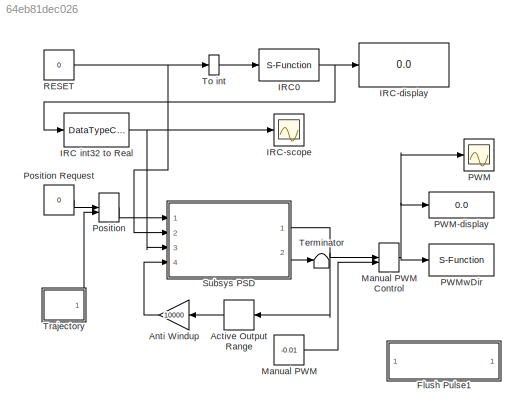
MODEL slx_64eb81dec026
KIND model
BLOCK [Constant]   RESET
  OpenFcn = if get_param(gcbh,'value')=='0' set_param(gcbh,'value','1'); else set_param(gcbh,'value','0'); end;
  Value = 0
BLOCK [DeadZone] Active Output Range
  LinearizeAsGain = off
  LowerValue = -1
  SaturateOnIntegerOverflow = off
  UpperValue = 1
BLOCK [Gain] Anti Windup
  Gain = 10000
  OutDataTypeStr = Inherit: Inherit via internal rule
  ParamDataTypeStr = Inherit: Inherit via internal rule
  SaturateOnIntegerOverflow = off
BLOCK [SubSystem] Flush Pulse1
  OpenFcn = system(['./run_model.sh ', get_param(bdroot(gcbh),'name'),' ', get_param(gcbh,'target_ip_address')]);
  Ports = []
  RequestExecContextInheritance = off
BLOCK [DataTypeConversion] IRC int32 to Real
  RndMeth = Floor
  SaturateOnIntegerOverflow = off
BLOCK [Display] IRC-display
  Decimation = 1
  Format = long
  Ports = [1]
BLOCK [Scope] IRC-scope
  DataFormat = StructureWithTime
  Floating = off
  MaxDataPoints = 200000
  NumInputPorts = 1
  Ports = [1]
  SampleTime = 0
  SaveName = ScopeData1
  ShowLegends = off
  TimeRange = 50
  YMax = 2100
  YMin = -2100
BLOCK [S-Function] IRC0
  EnableBusSupport = off
  FunctionName = sfIRCInput
  Parameters = Ts,chn-1,mode-1,gating-2,resetctrl-2,digfilter,reset_at_startup
  Ports = [1, 1]
BLOCK [Constant] Manual PWM
  Value = -0.01
BLOCK [ManualSwitch] Manual PWM Control
BLOCK [Scope] PWM
  DataFormat = StructureWithTime
  Floating = off
  MaxDataPoints = 200000
  NumInputPorts = 1
  Ports = [1]
  SampleTime = 0
  ShowLegends = off
  TimeRange = 50
  YMax = 0.1
  YMin = -0.1
BLOCK [Display] PWM-display
  Decimation = 1
  Ports = [1]
BLOCK [S-Function] PWMwDir
  EnableBusSupport = off
  FunctionName = sfPWMwDirOutput
  Parameters = chn-1,pwm_freq,dir_do_bit-1
  Ports = [1]
BLOCK [ManualSwitch] Position
  CurrentSetting = 0
BLOCK [Constant] Position Request
  Value = 0
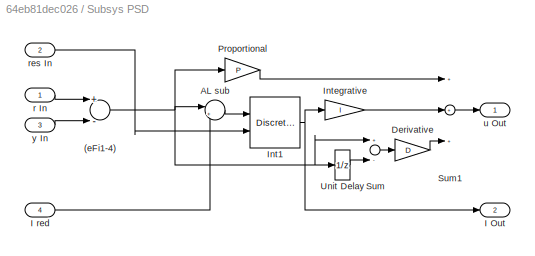
BLOCK [SubSystem] Subsys PSD
  Ports = [4, 2]
  RequestExecContextInheritance = off
BLOCK [Gain] Subsys PSD/  Derivative
  Gain = D
BLOCK [Sum] Subsys PSD/(eFi1-4)
  Inputs = +-
  Ports = [2, 1]
BLOCK [Sum] Subsys PSD/AL sub
  IconShape = round
  Inputs = |+-
  Ports = [2, 1]
BLOCK [Outport] Subsys PSD/I Out
  IconDisplay = Port number
  Port = 2
BLOCK [Inport] Subsys PSD/I red
  IconDisplay = Port number
  Port = 4
BLOCK [DiscreteIntegrator] Subsys PSD/Int1
  ExternalReset = level
  ICPrevOutput = DiscIntNeverNeededParam
  ICPrevScaledInput = DiscIntNeverNeededParam
  Ports = [2, 1]
  SampleTime = -1
BLOCK [Gain] Subsys PSD/Integrative
  Gain = I
BLOCK [Gain] Subsys PSD/Proportional
  Gain = P
BLOCK [Sum] Subsys PSD/Sum
  Inputs = +-
  Ports = [2, 1]
BLOCK [Sum] Subsys PSD/Sum1
  Inputs = +++
  Ports = [3, 1]
BLOCK [UnitDelay] Subsys PSD/Unit Delay
  SampleTime = Ts
BLOCK [Inport] Subsys PSD/r In
  IconDisplay = Port number
  SampleTime = Ts
BLOCK [Inport] Subsys PSD/res In
  IconDisplay = Port number
  Port = 2
BLOCK [Outport] Subsys PSD/u Out
  IconDisplay = Port number
BLOCK [Inport] Subsys PSD/y In
  IconDisplay = Port number
  Port = 3
  SampleTime = Ts
BLOCK [Terminator] Terminator
BLOCK [DataTypeConversion] To int
  RndMeth = Floor
  SaturateOnIntegerOverflow = off
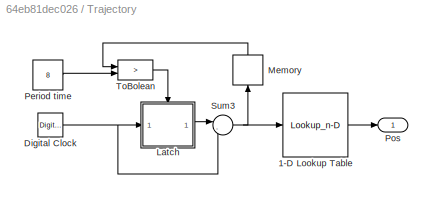
BLOCK [SubSystem] Trajectory
  Ports = [0, 1]
  RequestExecContextInheritance = off
BLOCK [Lookup_n-D] Trajectory/1-D Lookup Table
  BreakpointsForDimension1 = [0 3      5     6     6.1 8]
  NumberOfTableDimensions = 1
  Ports = [1, 1]
  RndMeth = Simplest
  Table = [0 2000 500 500 0    0]
BLOCK [DigitalClock] Trajectory/Digital Clock
  SampleTime = 0.001
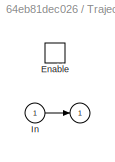
BLOCK [SubSystem] Trajectory/Latch
  Ports = [1, 1, 1]
  RequestExecContextInheritance = off
  TreatAsAtomicUnit = on
BLOCK [Outport] Trajectory/Latch/ 
  IconDisplay = Port number
  InitialOutput = 0
BLOCK [EnablePort] Trajectory/Latch/Enable
  Ports = []
BLOCK [Inport] Trajectory/Latch/In
  IconDisplay = Port number
BLOCK [Memory] Trajectory/Memory
BLOCK [Constant] Trajectory/Period time
  Value = 8
BLOCK [Outport] Trajectory/Pos
  IconDisplay = Port number
BLOCK [Sum] Trajectory/Sum3
  IconShape = round
  Inputs = |-+
  Ports = [2, 1]
BLOCK [RelationalOperator] Trajectory/ToBolean
  InputSameDT = off
  Operator = >
  Ports = [2, 1]
NET   RESET:1 -> Subsys PSD:2, To int:1
LINE Active Output Range:1 -> Anti Windup:1
LINE Anti Windup:1 -> Subsys PSD:4
NET IRC int32 to Real:1 -> IRC-scope:1, Subsys PSD:3
NET IRC0:1 -> IRC int32 to Real:1, IRC-display:1
NET Manual PWM Control:1 -> PWM-display:1, PWM:1, PWMwDir:1
LINE Manual PWM:1 -> Manual PWM Control:2
LINE Position Request:1 -> Position:1
LINE Position:1 -> Subsys PSD:1
LINE Subsys PSD/  Derivative:1 -> Subsys PSD/Sum1:3
NET Subsys PSD/(eFi1-4):1 -> Subsys PSD/AL sub:1, Subsys PSD/Proportional:1, Subsys PSD/Sum:1, Subsys PSD/Unit Delay:1
LINE Subsys PSD/AL sub:1 -> Subsys PSD/Int1:1
LINE Subsys PSD/I red:1 -> Subsys PSD/AL sub:2
NET Subsys PSD/Int1:1 -> Subsys PSD/I Out:1, Subsys PSD/Integrative:1
LINE Subsys PSD/Integrative:1 -> Subsys PSD/Sum1:2
LINE Subsys PSD/Proportional:1 -> Subsys PSD/Sum1:1
LINE Subsys PSD/Sum1:1 -> Subsys PSD/u Out:1
LINE Subsys PSD/Sum:1 -> Subsys PSD/  Derivative:1
LINE Subsys PSD/Unit Delay:1 -> Subsys PSD/Sum:2
LINE Subsys PSD/r In:1 -> Subsys PSD/(eFi1-4):1
LINE Subsys PSD/res In:1 -> Subsys PSD/Int1:2
LINE Subsys PSD/y In:1 -> Subsys PSD/(eFi1-4):2
NET Subsys PSD:1 -> Active Output Range:1, Manual PWM Control:1
LINE Subsys PSD:2 -> Terminator:1
LINE To int:1 -> IRC0:1
LINE Trajectory/1-D Lookup Table:1 -> Trajectory/Pos:1
NET Trajectory/Digital Clock:1 -> Trajectory/Latch:1, Trajectory/Sum3:2
LINE Trajectory/Latch:1 -> Trajectory/Sum3:1
LINE Trajectory/Memory:1 -> Trajectory/ToBolean:1
LINE Trajectory/Period time:1 -> Trajectory/ToBolean:2
NET Trajectory/Sum3:1 -> Trajectory/1-D Lookup Table:1, Trajectory/Memory:1
LINE Trajectory/ToBolean:1 -> Trajectory/Latch:enable
LINE Trajectory:1 -> Position:2
note: NET lines group one-source signal fan-out (src -> all destinations, sorted); 1:1 wires keep LINE
